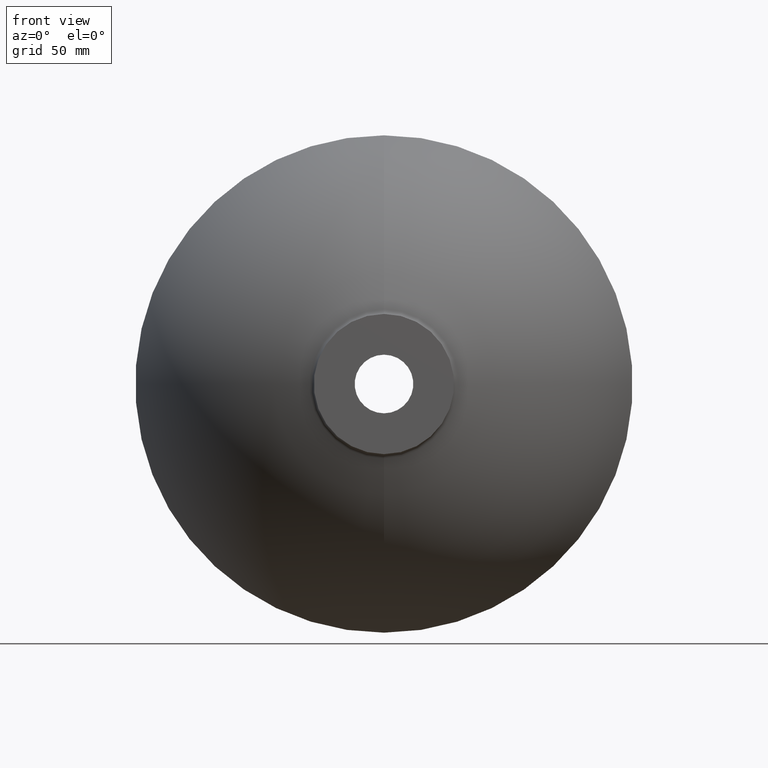
[diagram: clean part render]
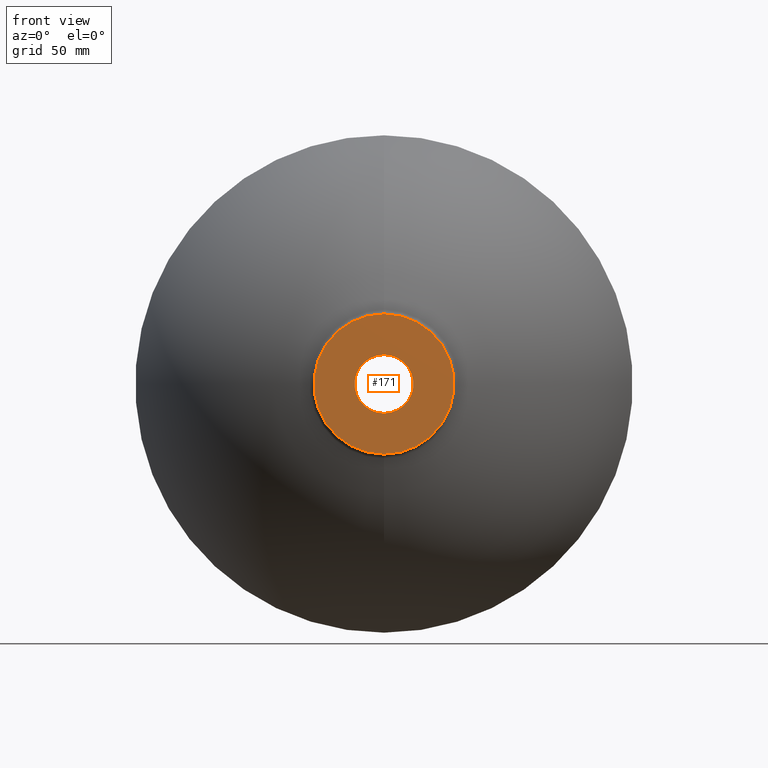
[diagram: same view with one face highlighted and labeled with its STEP entity id]
A machine part, front view. The second image highlights one B-rep face of the part: STEP entity #171.
In plain terms, the highlighted planar face has unit normal (0, 1, 0).
Its self-contained STEP definition (entity closure, byte-faithful):
#2 = DIRECTION ( 'NONE',  ( -0.0000000000000000000, -1.000000000000000000, -0.0000000000000000000 ) ) ;
#5 = ORIENTED_EDGE ( 'NONE', *, *, #330, .F. ) ;
#10 = CIRCLE ( 'NONE', #218, 55.00000000000001400 ) ;
#23 = DIRECTION ( 'NONE',  ( -0.0000000000000000000, -1.000000000000000000, -0.0000000000000000000 ) ) ;
#62 = VERTEX_POINT ( 'NONE', #66 ) ;
#66 = CARTESIAN_POINT ( 'NONE',  ( 6.735557395310445800E-015, 0.0000000000000000000, 55.00000000000002100 ) ) ;
#69 = CARTESIAN_POINT ( 'NONE',  ( 0.0000000000000000000, -6.123233995736772200E-017, 0.0000000000000000000 ) ) ;
#94 = FACE_OUTER_BOUND ( 'NONE', #245, .T. ) ;
#105 = DIRECTION ( 'NONE',  ( 0.0000000000000000000, 0.0000000000000000000, -1.000000000000000000 ) ) ;
#110 = DIRECTION ( 'NONE',  ( 0.0000000000000000000, 1.000000000000000000, 0.0000000000000000000 ) ) ;
#127 = DIRECTION ( 'NONE',  ( -0.0000000000000000000, -1.000000000000000000, -0.0000000000000000000 ) ) ;
#133 = CARTESIAN_POINT ( 'NONE',  ( 0.0000000000000000000, 0.0000000000000000000, -55.00000000000001400 ) ) ;
#134 = AXIS2_PLACEMENT_3D ( 'NONE', #196, #2, #372 ) ;
#153 = CIRCLE ( 'NONE', #134, 55.00000000000001400 ) ;
#156 = CARTESIAN_POINT ( 'NONE',  ( 0.0000000000000000000, -6.123233995736772200E-017, -23.00000000000000000 ) ) ;
#158 = EDGE_CURVE ( 'NONE', #226, #62, #10, .T. ) ;
#171 = ADVANCED_FACE ( 'NONE', ( #253, #94 ), #360, .F. ) ;
#173 = EDGE_CURVE ( 'NONE', #183, #261, #408, .T. ) ;
#183 = VERTEX_POINT ( 'NONE', #201 ) ;
#192 = DIRECTION ( 'NONE',  ( 0.0000000000000000000, 0.0000000000000000000, -1.000000000000000000 ) ) ;
#196 = CARTESIAN_POINT ( 'NONE',  ( 0.0000000000000000000, 0.0000000000000000000, 0.0000000000000000000 ) ) ;
#201 = CARTESIAN_POINT ( 'NONE',  ( 2.816687638038912400E-015, -6.123233995736772200E-017, 23.00000000000000000 ) ) ;
#209 = AXIS2_PLACEMENT_3D ( 'NONE', #69, #23, #105 ) ;
#218 = AXIS2_PLACEMENT_3D ( 'NONE', #250, #127, #192 ) ;
#226 = VERTEX_POINT ( 'NONE', #133 ) ;
#245 = EDGE_LOOP ( 'NONE', ( #425, #426 ) ) ;
#250 = CARTESIAN_POINT ( 'NONE',  ( 0.0000000000000000000, 0.0000000000000000000, 0.0000000000000000000 ) ) ;
#253 = FACE_BOUND ( 'NONE', #322, .T. ) ;
#261 = VERTEX_POINT ( 'NONE', #156 ) ;
#267 = AXIS2_PLACEMENT_3D ( 'NONE', #356, #110, #311 ) ;
#271 = DIRECTION ( 'NONE',  ( 0.0000000000000000000, 0.0000000000000000000, -1.000000000000000000 ) ) ;
#272 = DIRECTION ( 'NONE',  ( -0.0000000000000000000, -1.000000000000000000, -0.0000000000000000000 ) ) ;
#282 = CARTESIAN_POINT ( 'NONE',  ( 0.0000000000000000000, -6.123233995736772200E-017, 0.0000000000000000000 ) ) ;
#311 = DIRECTION ( 'NONE',  ( 0.0000000000000000000, -0.0000000000000000000, 1.000000000000000000 ) ) ;
#322 = EDGE_LOOP ( 'NONE', ( #5, #390 ) ) ;
#330 = EDGE_CURVE ( 'NONE', #261, #183, #376, .T. ) ;
#356 = CARTESIAN_POINT ( 'NONE',  ( -23.00000000000000000, -3.061616997868386100E-017, 0.0000000000000000000 ) ) ;
#360 = PLANE ( 'NONE',  #267 ) ;
#371 = AXIS2_PLACEMENT_3D ( 'NONE', #282, #272, #271 ) ;
#372 = DIRECTION ( 'NONE',  ( 0.0000000000000000000, 0.0000000000000000000, -1.000000000000000000 ) ) ;
#376 = CIRCLE ( 'NONE', #371, 23.00000000000000000 ) ;
#382 = EDGE_CURVE ( 'NONE', #62, #226, #153, .T. ) ;
#390 = ORIENTED_EDGE ( 'NONE', *, *, #173, .F. ) ;
#408 = CIRCLE ( 'NONE', #209, 23.00000000000000000 ) ;
#425 = ORIENTED_EDGE ( 'NONE', *, *, #158, .T. ) ;
#426 = ORIENTED_EDGE ( 'NONE', *, *, #382, .T. ) ;